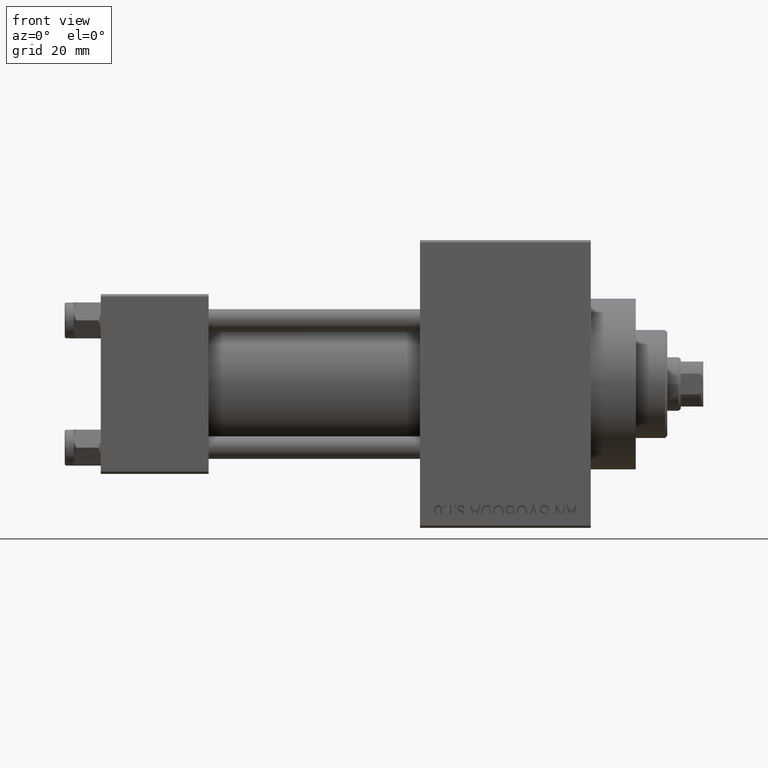
[diagram: clean part render]
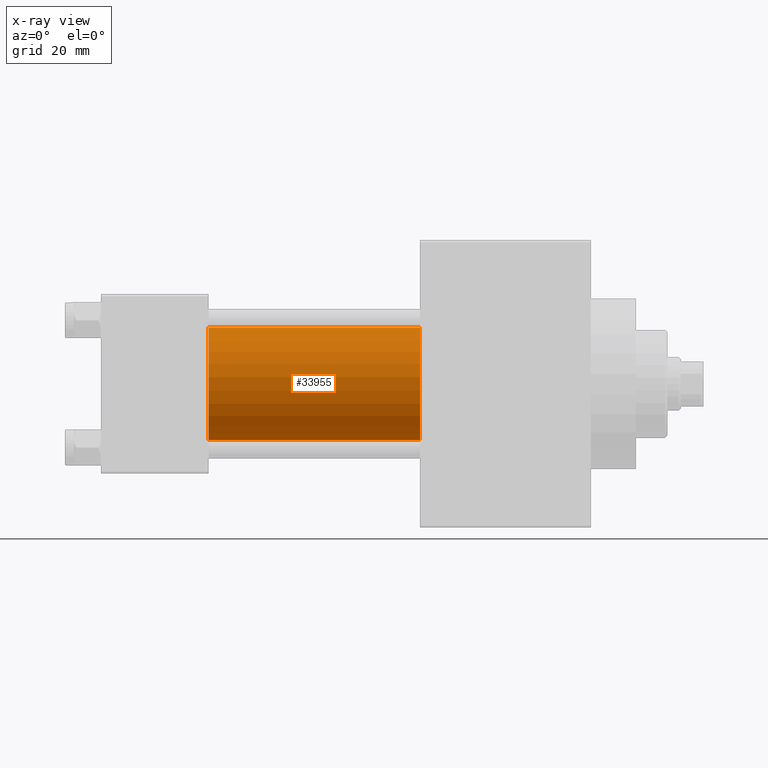
[diagram: x-ray — body ghosted, one internal face saturated and labeled with its STEP entity id]
A machine part, front view, then the same camera in x-ray: the body is ghosted and one INTERNAL B-rep face — a face not visible from any outside direction — is saturated and labeled: STEP entity #33955.
In plain terms, the highlighted cylindrical surface (partial cylindrical patch) has radius 12.5 mm, axis along (-1, -0, -0).
Its self-contained STEP definition (entity closure, byte-faithful):
#1088 = LINE ( 'NONE', #15644, #28989 ) ;
#2467 = VERTEX_POINT ( 'NONE', #40783 ) ;
#4559 = EDGE_CURVE ( 'NONE', #43794, #18371, #1088, .T. ) ;
#4664 = EDGE_CURVE ( 'NONE', #43794, #37572, #46337, .T. ) ;
#6188 = CARTESIAN_POINT ( 'NONE',  ( 24.00000000000000000, -2.602085213965210642E-15, 12.49999999999999645 ) ) ;
#7129 = EDGE_CURVE ( 'NONE', #18371, #2467, #10203, .T. ) ;
#10203 = CIRCLE ( 'NONE', #48789, 12.49999999999999645 ) ;
#11682 = ORIENTED_EDGE ( 'NONE', *, *, #4559, .F. ) ;
#12682 = DIRECTION ( 'NONE',  ( -1.000000000000000000, -0.000000000000000000, -0.000000000000000000 ) ) ;
#12994 = CARTESIAN_POINT ( 'NONE',  ( 71.00000000000001421, -1.071276715031019515E-15, -12.49999999999999645 ) ) ;
#14589 = DIRECTION ( 'NONE',  ( 0.000000000000000000, 0.000000000000000000, 1.000000000000000000 ) ) ;
#14937 = LINE ( 'NONE', #34158, #43819 ) ;
#15644 = CARTESIAN_POINT ( 'NONE',  ( 71.00000000000001421, -2.602085213965210642E-15, 12.49999999999999645 ) ) ;
#15860 = AXIS2_PLACEMENT_3D ( 'NONE', #47921, #40993, #14589 ) ;
#17443 = DIRECTION ( 'NONE',  ( 1.000000000000000000, 0.000000000000000000, 0.000000000000000000 ) ) ;
#17586 = CYLINDRICAL_SURFACE ( 'NONE', #15860, 12.49999999999999645 ) ;
#18371 = VERTEX_POINT ( 'NONE', #6188 ) ;
#21198 = EDGE_LOOP ( 'NONE', ( #48828, #27808, #33744, #11682 ) ) ;
#21729 = CARTESIAN_POINT ( 'NONE',  ( 71.00000000000001421, -2.602085213965210642E-15, 0.000000000000000000 ) ) ;
#24097 = CARTESIAN_POINT ( 'NONE',  ( 24.00000000000000000, -2.602085213965210642E-15, 0.000000000000000000 ) ) ;
#27808 = ORIENTED_EDGE ( 'NONE', *, *, #47095, .T. ) ;
#28989 = VECTOR ( 'NONE', #12682, 1000.000000000000000 ) ;
#31490 = DIRECTION ( 'NONE',  ( 0.000000000000000000, 0.000000000000000000, -1.000000000000000000 ) ) ;
#32859 = FACE_OUTER_BOUND ( 'NONE', #21198, .T. ) ;
#33744 = ORIENTED_EDGE ( 'NONE', *, *, #7129, .F. ) ;
#33955 = ADVANCED_FACE ( 'NONE', ( #32859 ), #17586, .F. ) ;
#34158 = CARTESIAN_POINT ( 'NONE',  ( 71.00000000000001421, -1.071276715031019515E-15, -12.49999999999999645 ) ) ;
#35882 = DIRECTION ( 'NONE',  ( 1.000000000000000000, 0.000000000000000000, 0.000000000000000000 ) ) ;
#37572 = VERTEX_POINT ( 'NONE', #12994 ) ;
#39263 = AXIS2_PLACEMENT_3D ( 'NONE', #21729, #35882, #39834 ) ;
#39834 = DIRECTION ( 'NONE',  ( 0.000000000000000000, 0.000000000000000000, -1.000000000000000000 ) ) ;
#40783 = CARTESIAN_POINT ( 'NONE',  ( 24.00000000000000000, -1.071276715031019515E-15, -12.49999999999999645 ) ) ;
#40993 = DIRECTION ( 'NONE',  ( -1.000000000000000000, -0.000000000000000000, -0.000000000000000000 ) ) ;
#41829 = DIRECTION ( 'NONE',  ( -1.000000000000000000, -0.000000000000000000, -0.000000000000000000 ) ) ;
#42823 = CARTESIAN_POINT ( 'NONE',  ( 71.00000000000001421, -2.602085213965210642E-15, 12.49999999999999645 ) ) ;
#43794 = VERTEX_POINT ( 'NONE', #42823 ) ;
#43819 = VECTOR ( 'NONE', #41829, 1000.000000000000000 ) ;
#46337 = CIRCLE ( 'NONE', #39263, 12.49999999999999645 ) ;
#47095 = EDGE_CURVE ( 'NONE', #37572, #2467, #14937, .T. ) ;
#47921 = CARTESIAN_POINT ( 'NONE',  ( 71.00000000000001421, -2.602085213965210642E-15, 0.000000000000000000 ) ) ;
#48789 = AXIS2_PLACEMENT_3D ( 'NONE', #24097, #17443, #31490 ) ;
#48828 = ORIENTED_EDGE ( 'NONE', *, *, #4664, .T. ) ;